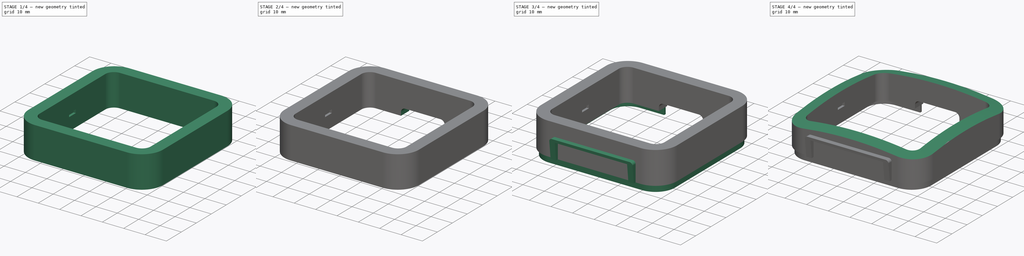
[diagram: build sequence overview — one tinted view per stage of 4, left to right]
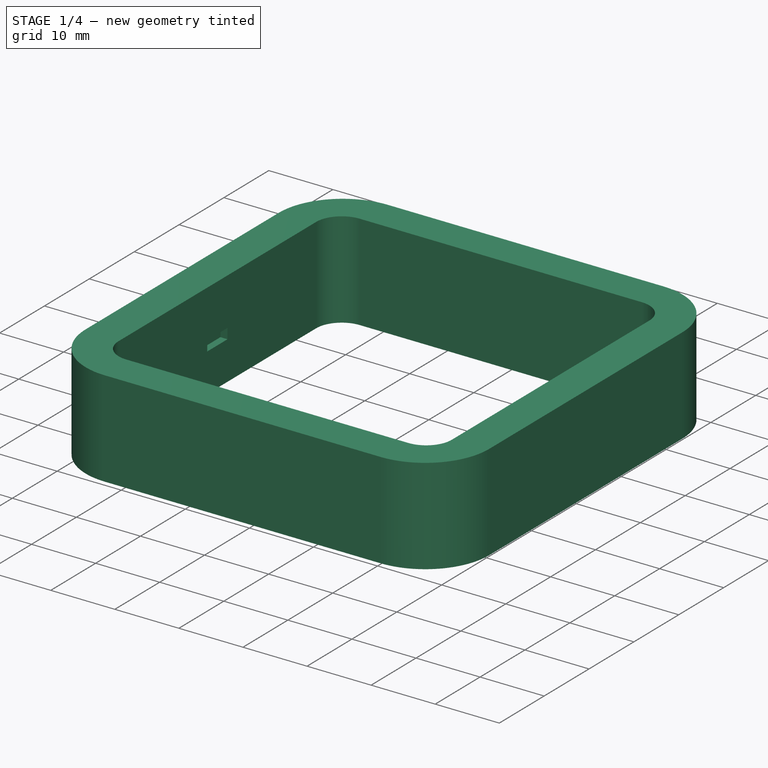
[diagram: stage 1 of 4 — iso view after this stage's code; geometry added in this stage tinted green]
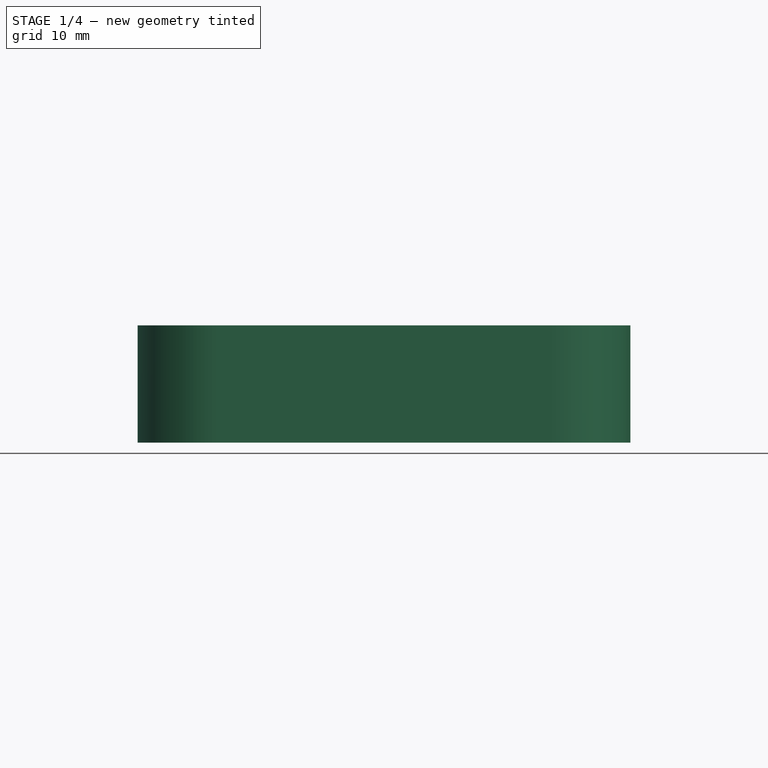
[diagram: stage 1 of 4 — front view after this stage's code; geometry added in this stage tinted green]
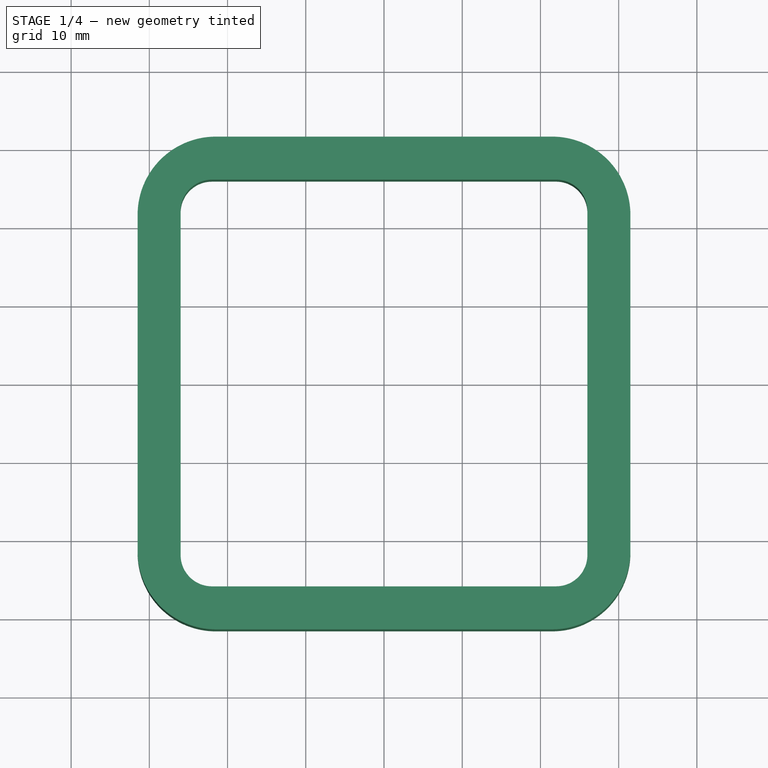
[diagram: stage 1 of 4 — top view after this stage's code; geometry added in this stage tinted green]
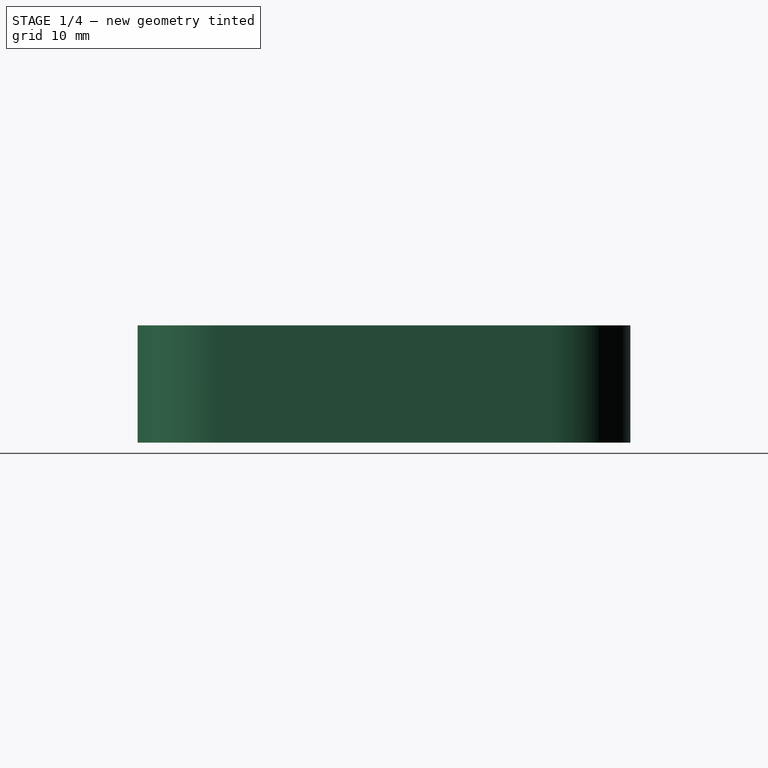
[diagram: stage 1 of 4 — right view after this stage's code; geometry added in this stage tinted green]
FCSTD DOCUMENT  (FreeCAD 0.19.4R1_voidlinux)
Label: shell_front
License: All rights reserved
LicenseURL: http://en.wikipedia.org/wiki/All_rights_reserved
objects: Sketcher::SketchObject×7, PartDesign::Pad×3, PartDesign::Pocket×3, PartDesign::Body×2, PartDesign::Revolution×1, PartDesign::Mirrored×1, Part::Cut×1, PartDesign::CoordinateSystem×1, App::Part×1
note: 26 computed .brp shape members not serialized (recipe doc carries the construction recipe); baked Part::Feature solids carry a one-line shape summary decoded from their .brp

FEATURE [Sketcher::SketchObject] Sketch001
  AttachmentOffset = pos=(0,0,-15) rot=(0,0,1;0rad)
  FullyConstrained = true
  MapMode = 5
  Placement = pos=(0,0,-15) rot=(0,0,1;0rad)
  Support = -> [XY_Plane002]
  sketch-geometry (16):
    g0: LineSegment StartX=-21.5 StartY=31.5 StartZ=0 EndX=21.5 EndY=31.5 EndZ=0
    g1: LineSegment StartX=31.5 StartY=21.5 StartZ=0 EndX=31.5 EndY=-21.5 EndZ=0
    g2: LineSegment StartX=-21.5 StartY=-31.5 StartZ=0 EndX=21.5 EndY=-31.5 EndZ=0
    g3: LineSegment StartX=-31.5 StartY=21.5 StartZ=0 EndX=-31.5 EndY=-21.5 EndZ=0
    g4: ArcOfCircle CenterX=-21.5 CenterY=21.5 CenterZ=0 NormalX=0 NormalY=0 NormalZ=1 AngleXU=0 Radius=10 StartAngle=1.57079 EndAngle=3.14159
    g5: ArcOfCircle CenterX=21.5 CenterY=21.5 CenterZ=0 NormalX=0 NormalY=0 NormalZ=1 AngleXU=0 Radius=10 StartAngle=1.76314e-07 EndAngle=1.5708
    g6: ArcOfCircle CenterX=21.5 CenterY=-21.5 CenterZ=0 NormalX=0 NormalY=0 NormalZ=1 AngleXU=0 Radius=10 StartAngle=4.71239 EndAngle=6.28319
    g7: ArcOfCircle CenterX=-21.5 CenterY=-21.5 CenterZ=0 NormalX=0 NormalY=0 NormalZ=1 AngleXU=0 Radius=10 StartAngle=3.14159 EndAngle=4.71239
    g8: LineSegment StartX=-22 StartY=26 StartZ=0 EndX=22 EndY=26 EndZ=0
    g9: LineSegment StartX=-22 StartY=-26 StartZ=0 EndX=22 EndY=-26 EndZ=0
    g10: LineSegment StartX=26 StartY=22 StartZ=0 EndX=26 EndY=-22 EndZ=0
    g11: LineSegment StartX=-26 StartY=22 StartZ=0 EndX=-26 EndY=-22 EndZ=0
    g12: ArcOfCircle CenterX=-22 CenterY=22 CenterZ=0 NormalX=0 NormalY=0 NormalZ=1 AngleXU=0 Radius=4 StartAngle=1.5708 EndAngle=3.14159
    g13: ArcOfCircle CenterX=22 CenterY=22 CenterZ=0 NormalX=0 NormalY=0 NormalZ=1 AngleXU=0 Radius=4 StartAngle=6.28319 EndAngle=7.85398
    g14: ArcOfCircle CenterX=22 CenterY=-22 CenterZ=0 NormalX=0 NormalY=0 NormalZ=1 AngleXU=0 Radius=4 StartAngle=4.71239 EndAngle=6.28319
    g15: ArcOfCircle CenterX=-22 CenterY=-22 CenterZ=0 NormalX=0 NormalY=0 NormalZ=1 AngleXU=0 Radius=4 StartAngle=3.14159 EndAngle=4.71239
  constraints (54):
    c: Horizontal(g0)
    c: Vertical(g1)
    c: Horizontal(g2)
    c: Vertical(g3)
    c: Equal(g1,g2)
    c: Equal(g2,g3)
    c: Equal(g2,g0)
    c: Coincident(g4,g0)
    c: Coincident(g4,g3)
    c: Coincident(g5,g0)
    c: Coincident(g5,g1)
    c: Coincident(g6,g1)
    c: Coincident(g6,g2)
    c: Coincident(g7,g2)
    c: Coincident(g7,g3)
    c: Equal(g5,g6)
    c: Equal(g6,g7)
    c: Equal(g7,g4)
    c: Tangent(g4,g0)
    c: Tangent(g4,g3)
    c: Tangent(g0,g5)
    c: Tangent(g1,g5)
    c: Tangent(g1,g6)
    c: Tangent(g7,g2)
    c: Radius(g7) = 10
    c: DistanceX(g3,g1) = 63
    c: Symmetric(g0,g2,g-1)
    c: Horizontal(g8)
    c: Horizontal(g9)
    c: Vertical(g10)
    c: Vertical(g11)
    c: Coincident(g12,g8)
    c: Coincident(g12,g11)
    c: Coincident(g13,g8)
    c: Coincident(g13,g10)
    c: Coincident(g14,g10)
    c: Coincident(g14,g9)
    c: Coincident(g15,g11)
    c: Coincident(g15,g9)
    c: Equal(g8,g10)
    c: Equal(g10,g9)
    c: Equal(g9,g11)
    c: Equal(g12,g13)
    c: Equal(g14,g13)
    c: Equal(g14,g15)
    c: Tangent(g12,g8)
    c: Tangent(g8,g13)
    c: Tangent(g13,g10)
    c: Tangent(g10,g14)
    c: Tangent(g14,g9)
    c: Symmetric(g8,g9,g-1)
    c: DistanceX(g11,g10) = 52
    c: Radius(g12) = 4
    c: Tangent(g15,g11)
FEATURE [PartDesign::Pad] Pad
  Direction = (1,1,1)
  Length = 15
  Length2 = 100
  Profile = -> Sketch001
  Type = 0
FEATURE [PartDesign::Body] Body002  label="limit_walls"
  Group = -> [Sketch002,Revolution001]
  Origin = -> Origin003
  Tip = -> Revolution001
FEATURE [Sketcher::SketchObject] Sketch
  ExternalGeometry = -> [Pad]
  FullyConstrained = true
  MapMode = 5
  Placement = pos=(-26,0,0) rot=(0.57735,0.57735,0.57735;2.0944rad)
  Support = -> [Pad]
  sketch-geometry (4):
    g0: LineSegment StartX=-2.25 StartY=-7.4 StartZ=0 EndX=2.25 EndY=-7.4 EndZ=0
    g1: LineSegment StartX=2.25 StartY=-7.4 StartZ=0 EndX=2.25 EndY=-9 EndZ=0
    g2: LineSegment StartX=2.25 StartY=-9 StartZ=0 EndX=-2.25 EndY=-9 EndZ=0
    g3: LineSegment StartX=-2.25 StartY=-9 StartZ=0 EndX=-2.25 EndY=-7.4 EndZ=0
  constraints (11):
    c: Coincident(g0,g1)
    c: Coincident(g1,g2)
    c: Coincident(g2,g3)
    c: Coincident(g3,g0)
    c: Horizontal(g0)
    c: Vertical(g1)
    c: Vertical(g3)
    c: Symmetric(g1,g2,g-2)
    c: DistanceY(g1,g-1) = 9
    c: Distance(g3) = 1.6
    c: Distance(g0) = 4.5
FEATURE [PartDesign::Pocket] Pocket
  BaseFeature = -> Pad
  Length = 1.1
  Length2 = 100
  Profile = -> Sketch
  Type = 0
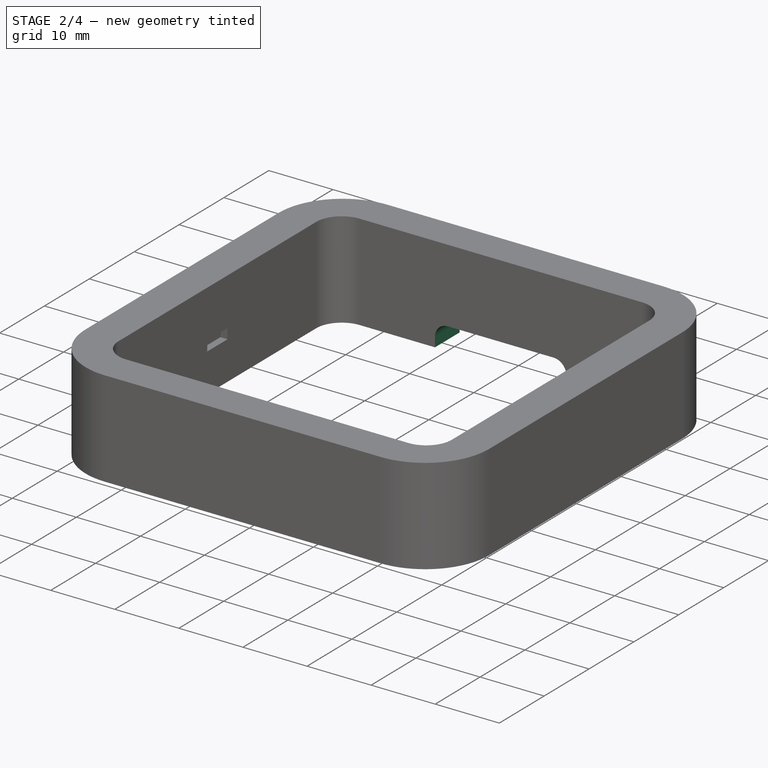
[diagram: stage 2 of 4 — iso view after this stage's code; geometry added in this stage tinted green]
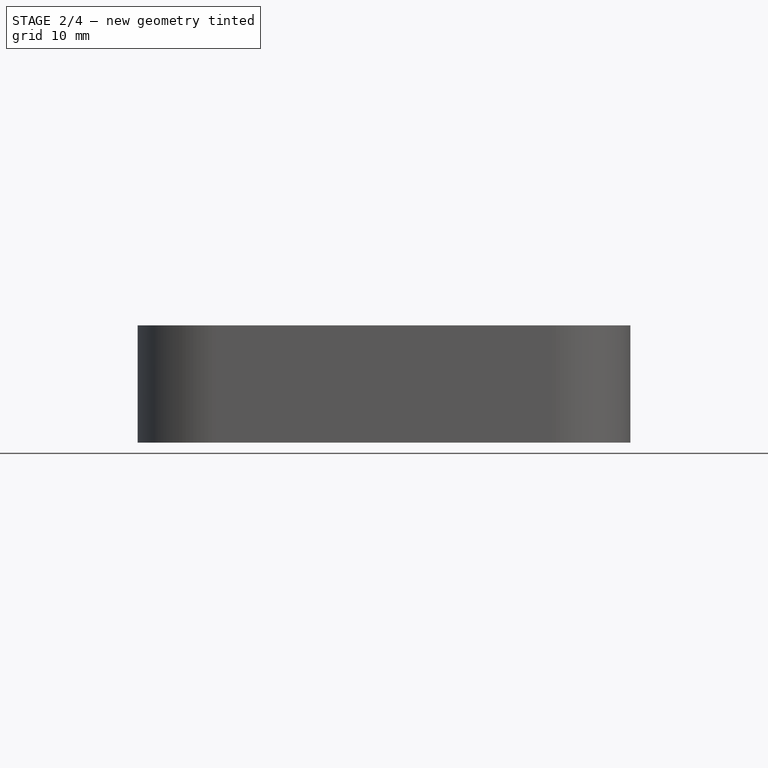
[diagram: stage 2 of 4 — front view after this stage's code; geometry added in this stage tinted green]
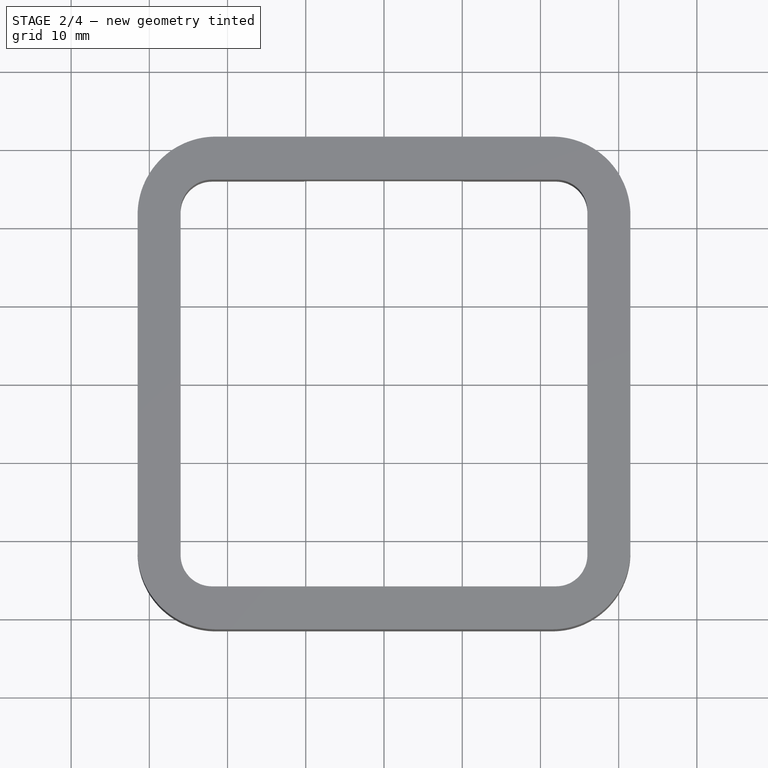
[diagram: stage 2 of 4 — top view after this stage's code; geometry added in this stage tinted green]
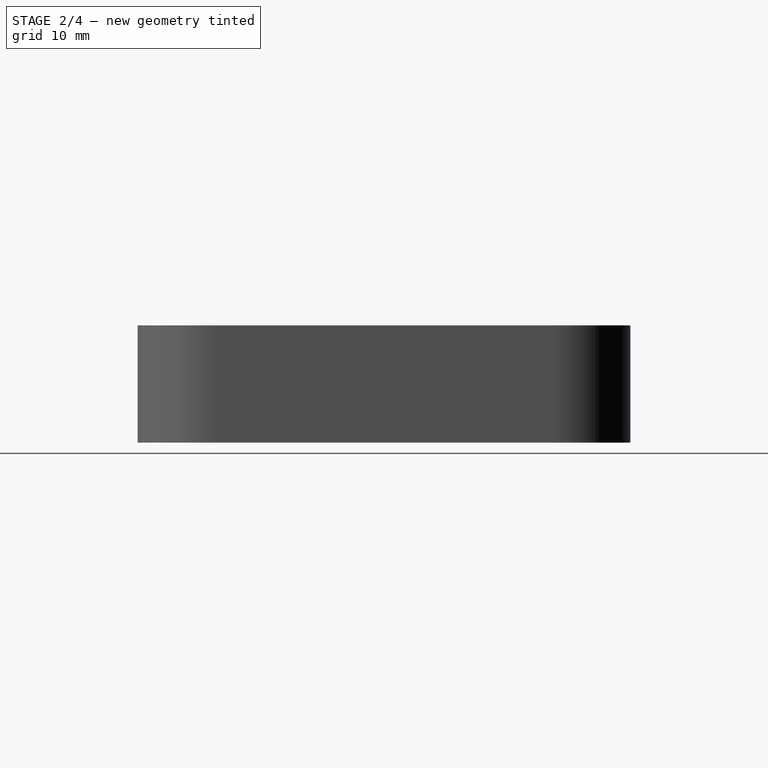
[diagram: stage 2 of 4 — right view after this stage's code; geometry added in this stage tinted green]
FEATURE [PartDesign::Mirrored] Mirrored
  BaseFeature = -> Pocket
  MirrorPlane = -> YZ_Plane002
  Originals = -> [Pocket]
FEATURE [Sketcher::SketchObject] Sketch003
  ExternalGeometry = -> [Mirrored]
  FullyConstrained = true
  MapMode = 5
  Placement = pos=(0,31.5,0) rot=(0,0.707107,0.707107;3.14159rad)
  Support = -> [Mirrored]
  sketch-geometry (6):
    g0: LineSegment StartX=-10.25 StartY=-15 StartZ=0 EndX=-10.25 EndY=-13.5 EndZ=0
    g1: LineSegment StartX=10.25 StartY=-15 StartZ=0 EndX=10.25 EndY=-13.5 EndZ=0
    g2: LineSegment StartX=-8.25 StartY=-11.5 StartZ=0 EndX=8.25 EndY=-11.5 EndZ=0
    g3: ArcOfCircle CenterX=8.25 CenterY=-13.5 CenterZ=0 NormalX=0 NormalY=0 NormalZ=1 AngleXU=0 Radius=2 StartAngle=6.28318 EndAngle=7.85398
    g4: ArcOfCircle CenterX=-8.25 CenterY=-13.5 CenterZ=0 NormalX=0 NormalY=0 NormalZ=1 AngleXU=0 Radius=2 StartAngle=1.5708 EndAngle=3.14159
    g5: LineSegment StartX=-10.25 StartY=-15 StartZ=0 EndX=10.25 EndY=-15 EndZ=0
  constraints (18):
    c: PointOnObject(g0,g-3)
    c: Symmetric(g0,g1,g-2)
    c: Equal(g0,g1)
    c: DistanceY(g0,g2) = 3.5
    c: Distance(g1,g0) = 20.5
    c: Symmetric(g2,g2,g-2)
    c: Coincident(g3,g2)
    c: Coincident(g3,g1)
    c: Coincident(g4,g2)
    c: Coincident(g4,g0)
    c: Tangent(g0,g4)
    c: Tangent(g4,g2)
    c: Tangent(g3,g2)
    c: Tangent(g3,g1)
    c: Radius(g3) = 2
    c: Vertical(g0)
    c: Coincident(g5,g0)
    c: Coincident(g5,g1)
FEATURE [PartDesign::Pocket] Pocket001
  BaseFeature = -> Mirrored
  Length = 5
  Length2 = 100
  Profile = -> Sketch003
  Type = 2
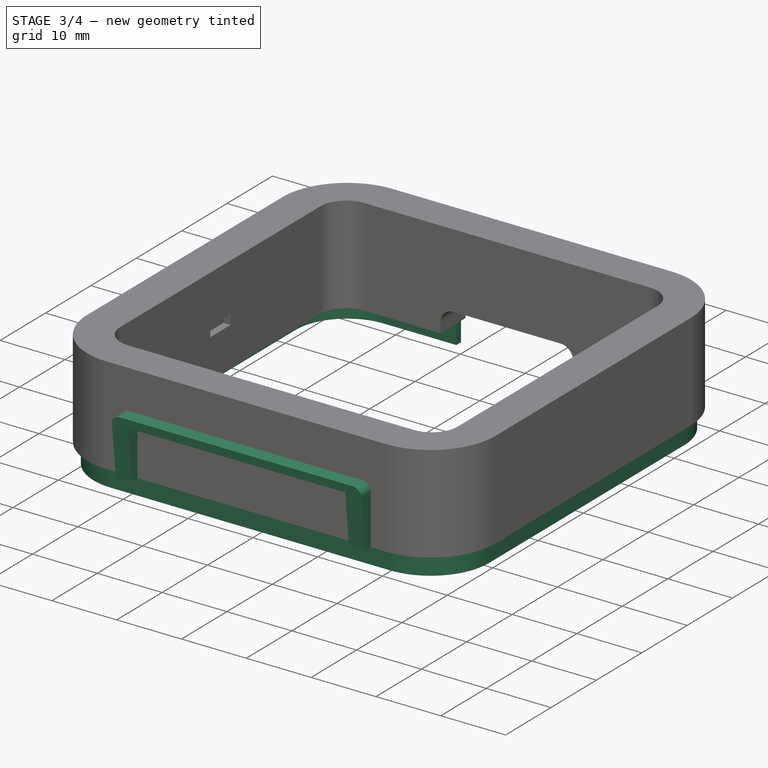
[diagram: stage 3 of 4 — iso view after this stage's code; geometry added in this stage tinted green]
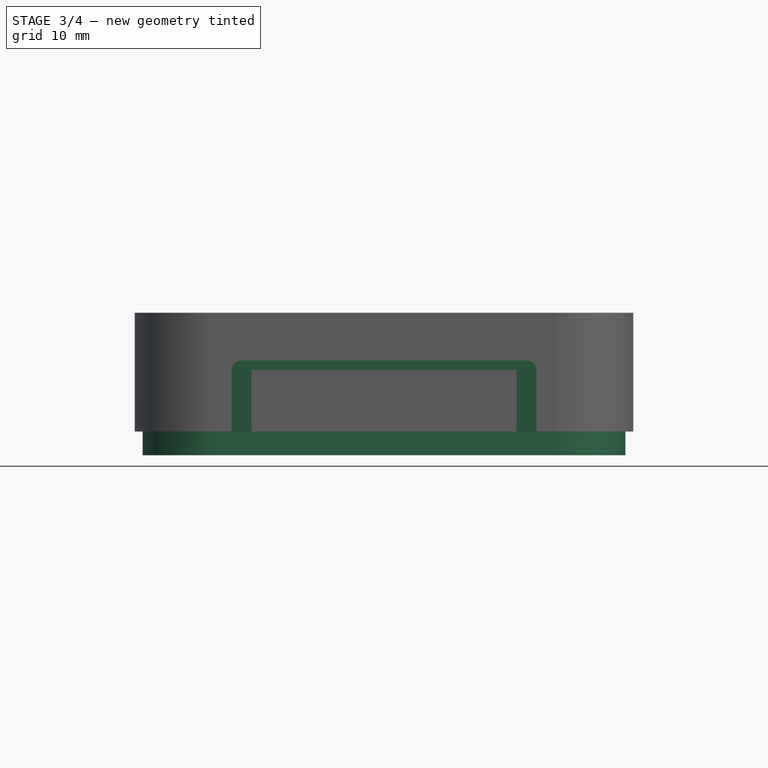
[diagram: stage 3 of 4 — front view after this stage's code; geometry added in this stage tinted green]
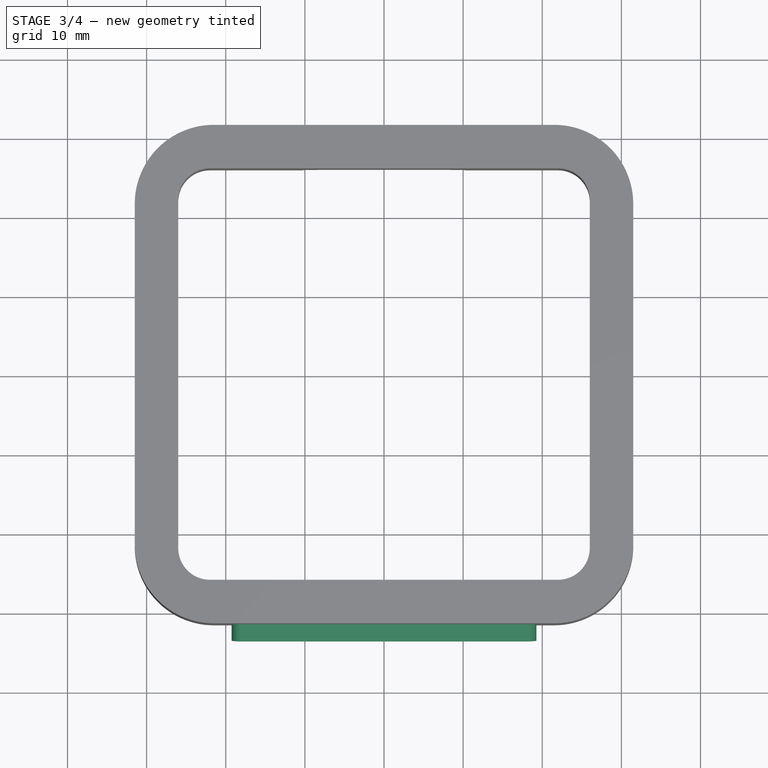
[diagram: stage 3 of 4 — top view after this stage's code; geometry added in this stage tinted green]
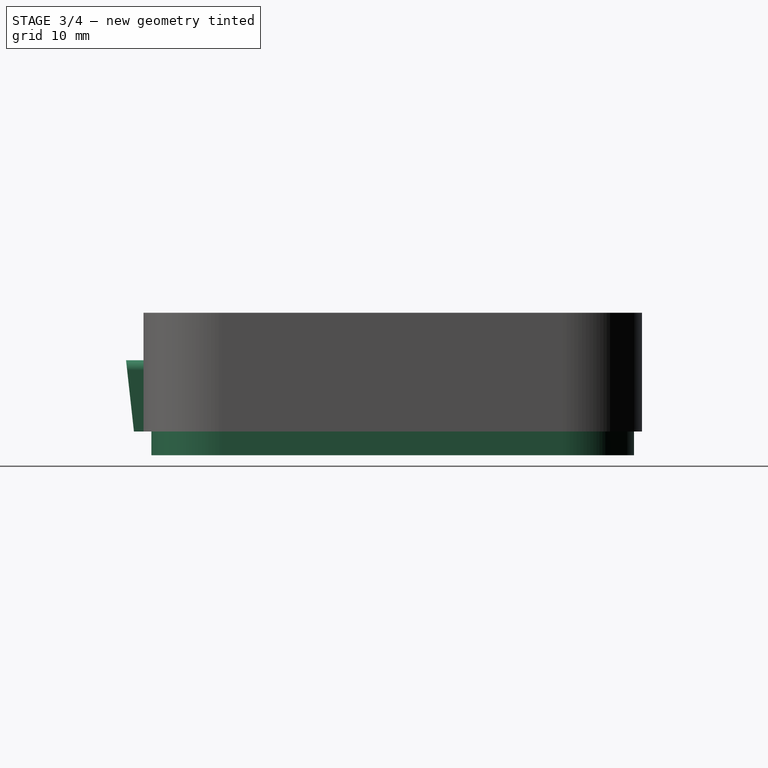
[diagram: stage 3 of 4 — right view after this stage's code; geometry added in this stage tinted green]
FEATURE [Sketcher::SketchObject] Sketch004
  ExternalGeometry = -> [Pocket001]
  FullyConstrained = true
  MapMode = 5
  Placement = pos=(0,-31.5,0) rot=(1,0,0;1.5708rad)
  Support = -> [Pocket001]
  sketch-geometry (10):
    g0: LineSegment StartX=-19.25 StartY=-15 StartZ=0 EndX=-19.25 EndY=-7.25 EndZ=0
    g1: LineSegment StartX=-16.75 StartY=-15 StartZ=0 EndX=-16.75 EndY=-7.25 EndZ=0
    g2: LineSegment StartX=-19.25 StartY=-15 StartZ=0 EndX=-16.75 EndY=-15 EndZ=0
    g3: LineSegment StartX=16.75 StartY=-15 StartZ=0 EndX=16.75 EndY=-7.25 EndZ=0
    g4: LineSegment StartX=19.25 StartY=-15 StartZ=0 EndX=19.25 EndY=-7.25 EndZ=0
    g5: LineSegment StartX=16.75 StartY=-15 StartZ=0 EndX=19.25 EndY=-15 EndZ=0
    g6: LineSegment StartX=-18 StartY=-6 StartZ=0 EndX=18 EndY=-6 EndZ=0
    g7: ArcOfCircle CenterX=-18 CenterY=-7.25 CenterZ=0 NormalX=0 NormalY=0 NormalZ=1 AngleXU=0 Radius=1.25 StartAngle=1.5708 EndAngle=3.14159
    g8: ArcOfCircle CenterX=18 CenterY=-7.25 CenterZ=0 NormalX=0 NormalY=0 NormalZ=1 AngleXU=0 Radius=1.25 StartAngle=6.28319 EndAngle=7.85398
    g9: LineSegment StartX=-16.75 StartY=-7.25 StartZ=0 EndX=16.75 EndY=-7.25 EndZ=0
  constraints (27):
    c: PointOnObject(g0,g-3)
    c: Vertical(g0)
    c: PointOnObject(g1,g-3)
    c: Vertical(g1)
    c: Coincident(g2,g0)
    c: Coincident(g2,g1)
    c: Distance(g2) = 2.5
    c: Coincident(g5,g3)
    c: Coincident(g5,g4)
    c: Symmetric(g4,g0,g-2)
    c: Symmetric(g3,g1,g-2)
    c: Symmetric(g1,g3,g-2)
    c: Symmetric(g0,g4,g-2)
    c: Distance(g3,g1) = 33.5
    c: Coincident(g7,g0)
    c: Coincident(g7,g6)
    c: Coincident(g8,g6)
    c: Coincident(g8,g4)
    c: Tangent(g4,g8)
    c: Tangent(g8,g6)
    c: Symmetric(g6,g6,g-2)
    c: Equal(g8,g7)
    c: DistanceY(g0,g6) = 9
    c: Coincident(g9,g1)
    c: Coincident(g9,g3)
    c: DistanceY(g1,g6) = 1.25
    c: Radius(g7) = 1.25
FEATURE [PartDesign::Pad] Pad001
  BaseFeature = -> Pocket001
  Direction = (1,1,1)
  Length = 5
  Length2 = 100
  Profile = -> Sketch004
  Type = 0
FEATURE [Sketcher::SketchObject] Sketch005
  ExternalGeometry = -> [Pad001]
  FullyConstrained = true
  MapMode = 5
  Placement = pos=(-19.25,0,0) rot=(0.57735,-0.57735,-0.57735;2.0944rad)
  Support = -> [Pad001]
  expr: Constraints[0] = atan(2 / 18)
  sketch-geometry (4):
    g0: LineSegment StartX=33.7 StartY=-6 StartZ=0 EndX=32.7 EndY=-15 EndZ=0
    g1: LineSegment StartX=33.7 StartY=-6 StartZ=0 EndX=36.5 EndY=-6 EndZ=0
    g2: LineSegment StartX=36.5 StartY=-6 StartZ=0 EndX=36.5 EndY=-15 EndZ=0
    g3: LineSegment StartX=36.5 StartY=-15 StartZ=0 EndX=32.7 EndY=-15 EndZ=0
  constraints (11):
    c: Angle(g0,g-3) = 0.110657
    c: PointOnObject(g0,g-4)
    c: PointOnObject(g0,g-5)
    c: Distance(g0,g-5) = 1.2
    c: Coincident(g1,g0)
    c: PointOnObject(g1,g-4)
    c: PointOnObject(g1,g-6)
    c: Coincident(g2,g1)
    c: Coincident(g2,g-6)
    c: Coincident(g3,g2)
    c: Coincident(g3,g0)
FEATURE [PartDesign::Pocket] Pocket002
  BaseFeature = -> Pad001
  Length = 5
  Length2 = 100
  Profile = -> Sketch005
  Type = 1
FEATURE [Sketcher::SketchObject] Sketch006
  ExternalGeometry = -> [Pocket002]
  FullyConstrained = true
  MapMode = 5
  Placement = pos=(0,0,-15) rot=(1,0,0;3.14159rad)
  Support = -> [Pocket002]
  sketch-geometry (24):
    g0: LineSegment StartX=-21.5 StartY=30.5 StartZ=0 EndX=21.5 EndY=30.5 EndZ=0
    g1: LineSegment StartX=-21.5 StartY=29.5 StartZ=0 EndX=21.5 EndY=29.5 EndZ=0
    g2: ArcOfCircle CenterX=-21.5 CenterY=21.5 CenterZ=0 NormalX=0 NormalY=0 NormalZ=1 AngleXU=0 Radius=8.99998 StartAngle=1.57079 EndAngle=3.14159
    g3: LineSegment StartX=-21.5 StartY=30.5 StartZ=0 EndX=-21.5 EndY=31.5 EndZ=0
    g4: LineSegment StartX=-30.5 StartY=21.5 StartZ=0 EndX=-30.5 EndY=-21.5 EndZ=0
    g5: LineSegment StartX=-29.5 StartY=21.5 StartZ=0 EndX=-29.5 EndY=-21.5 EndZ=0
    g6: ArcOfCircle CenterX=-21.5 CenterY=21.5 CenterZ=0 NormalX=0 NormalY=0 NormalZ=1 AngleXU=0 Radius=8 StartAngle=1.5708 EndAngle=3.14159
    g7: LineSegment StartX=-21.5 StartY=30.5 StartZ=0 EndX=-21.5 EndY=29.5 EndZ=0
    g8: LineSegment StartX=-31.5 StartY=21.5 StartZ=0 EndX=-30.5 EndY=21.5 EndZ=0
    g9: LineSegment StartX=-30.5 StartY=21.5 StartZ=0 EndX=-29.5 EndY=21.5 EndZ=0
    g10: LineSegment StartX=29.5 StartY=21.5 StartZ=0 EndX=29.5 EndY=-21.5 EndZ=0
    g11: LineSegment StartX=30.5 StartY=21.5 StartZ=0 EndX=30.5 EndY=-21.5 EndZ=0
    g12: ArcOfCircle CenterX=21.5 CenterY=21.5 CenterZ=0 NormalX=0 NormalY=0 NormalZ=1 AngleXU=0 Radius=8.99998 StartAngle=6.28318 EndAngle=7.85398
    g13: ArcOfCircle CenterX=21.5 CenterY=21.5 CenterZ=0 NormalX=0 NormalY=0 NormalZ=1 AngleXU=0 Radius=7.99998 StartAngle=6.28318 EndAngle=7.85398
    g14: ArcOfCircle CenterX=-21.5 CenterY=-21.5 CenterZ=0 NormalX=0 NormalY=0 NormalZ=1 AngleXU=0 Radius=8.99998 StartAngle=3.14159 EndAngle=4.71239
    g15: ArcOfCircle CenterX=-21.5 CenterY=-21.5 CenterZ=0 NormalX=0 NormalY=0 NormalZ=1 AngleXU=0 Radius=7.99998 StartAngle=3.14159 EndAngle=4.71239
    g16: ArcOfCircle CenterX=21.5 CenterY=-21.5 CenterZ=0 NormalX=0 NormalY=0 NormalZ=1 AngleXU=0 Radius=7.99998 StartAngle=4.71239 EndAngle=6.28319
    g17: ArcOfCircle CenterX=21.5 CenterY=-21.5 CenterZ=0 NormalX=0 NormalY=0 NormalZ=1 AngleXU=0 Radius=8.99998 StartAngle=4.71239 EndAngle=6.28319
    g18: LineSegment StartX=-21.5 StartY=-29.5 StartZ=0 EndX=-10.25 EndY=-29.5 EndZ=0
    g19: LineSegment StartX=-21.5 StartY=-30.5 StartZ=0 EndX=-10.25 EndY=-30.5 EndZ=0
    g20: LineSegment StartX=-10.25 StartY=-30.5 StartZ=0 EndX=-10.25 EndY=-29.5 EndZ=0
    g21: LineSegment StartX=21.5 StartY=-30.5 StartZ=0 EndX=10.25 EndY=-30.5 EndZ=0
    g22: LineSegment StartX=21.5 StartY=-29.5 StartZ=0 EndX=10.25 EndY=-29.5 EndZ=0
    g23: LineSegment StartX=10.25 StartY=-29.5 StartZ=0 EndX=10.25 EndY=-30.5 EndZ=0
  constraints (63):
    c: Horizontal(g0)
    c: DistanceY(g0,g-3) = 1
    c: DistanceY(g1,g0) = 1
    c: Coincident(g2,g0)
    c: Tangent(g2,g0)
    c: Coincident(g3,g0)
    c: Coincident(g3,g-4)
    c: Vertical(g3)
    c: Coincident(g4,g2)
    c: Coincident(g6,g1)
    c: Coincident(g6,g5)
    c: Coincident(g7,g0)
    c: Coincident(g7,g1)
    c: Vertical(g7)
    c: Coincident(g8,g-4)
    c: Coincident(g8,g2)
    c: Coincident(g9,g2)
    c: Coincident(g9,g5)
    c: Horizontal(g9)
    c: Horizontal(g8)
    c: Tangent(g6,g1)
    c: Tangent(g6,g5)
    c: Coincident(g12,g0)
    c: Coincident(g12,g11)
    c: Coincident(g13,g1)
    c: Coincident(g13,g10)
    c: Symmetric(g1,g1,g-2)
    c: Symmetric(g11,g2,g-2)
    c: Symmetric(g10,g5,g-2)
    c: Symmetric(g12,g2,g-2)
    c: Coincident(g13,g12)
    c: Symmetric(g10,g10,g-1)
    c: Symmetric(g11,g11,g-1)
    c: Symmetric(g5,g5,g-1)
    c: Symmetric(g4,g2,g-1)
    c: Coincident(g14,g4)
    c: Coincident(g15,g5)
    c: Symmetric(g2,g15,g-1)
    c: Symmetric(g2,g14,g-1)
    c: Coincident(g16,g10)
    c: Coincident(g17,g11)
    c: Symmetric(g16,g14,g-2)
    c: Symmetric(g17,g14,g-2)
    c: Coincident(g18,g15)
    c: PointOnObject(g18,g-5)
    c: Horizontal(g18)
    c: Coincident(g19,g14)
    c: PointOnObject(g19,g-5)
    c: Horizontal(g19)
    c: Coincident(g20,g19)
    c: Coincident(g20,g18)
    c: Coincident(g21,g17)
    c: PointOnObject(g21,g-6)
    c: Horizontal(g21)
    c: Coincident(g22,g16)
    c: PointOnObject(g22,g-6)
    c: Horizontal(g22)
    c: Coincident(g23,g22)
    c: Coincident(g23,g21)
    c: Tangent(g15,g18)
    c: Tangent(g14,g19)
    c: Tangent(g22,g16)
    c: Tangent(g17,g21)
FEATURE [PartDesign::Pad] Pad002
  BaseFeature = -> Pocket002
  Direction = (1,1,1)
  Length = 3
  Length2 = 100
  Profile = -> Sketch006
  Type = 0
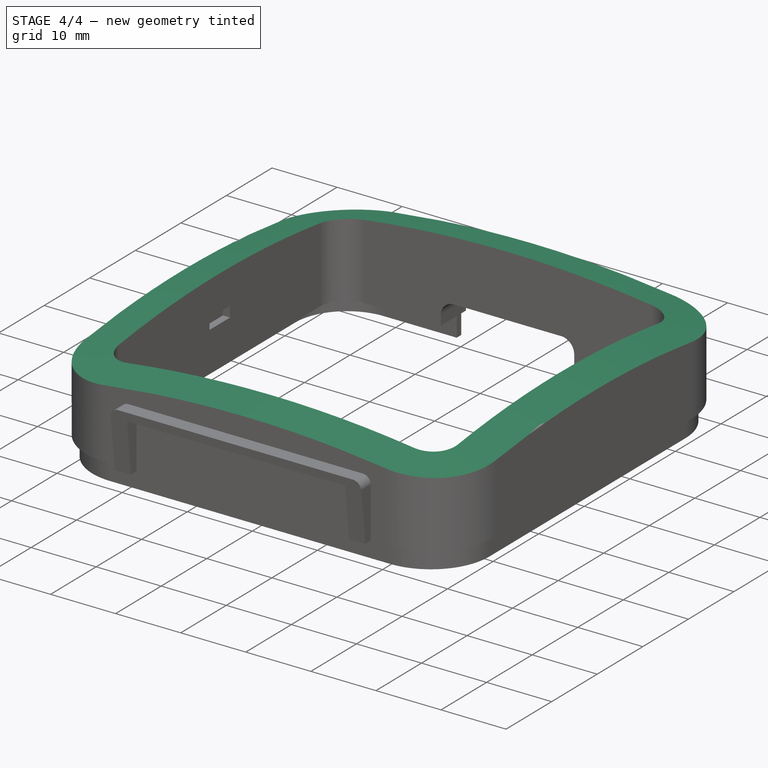
[diagram: stage 4 of 4 — iso view after this stage's code; geometry added in this stage tinted green]
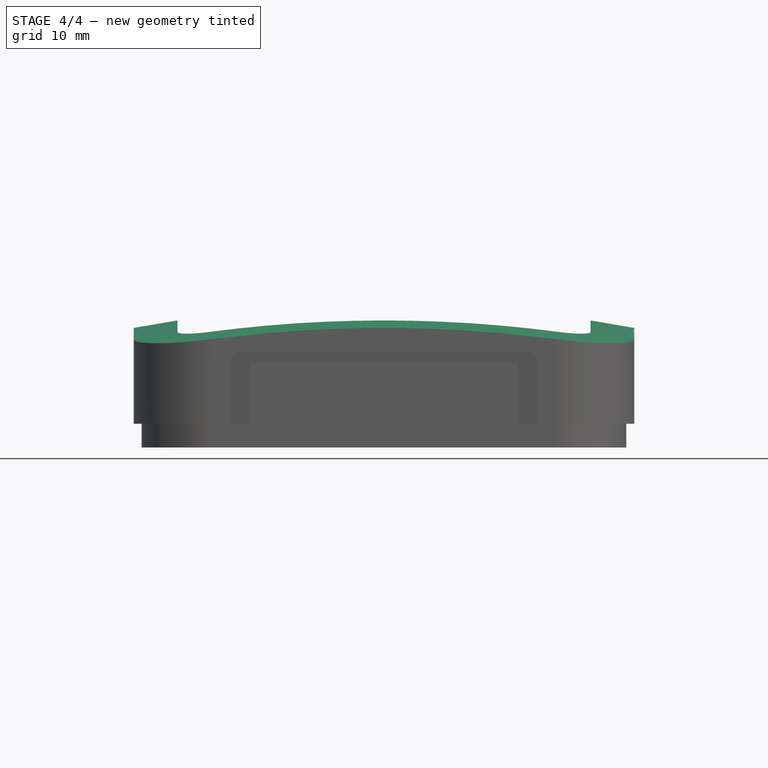
[diagram: stage 4 of 4 — front view after this stage's code; geometry added in this stage tinted green]
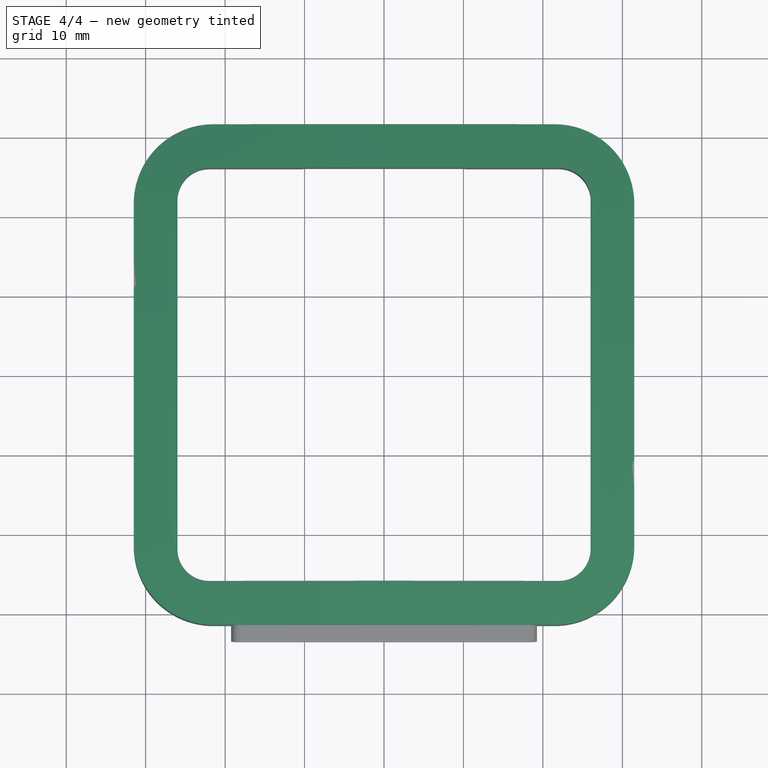
[diagram: stage 4 of 4 — top view after this stage's code; geometry added in this stage tinted green]
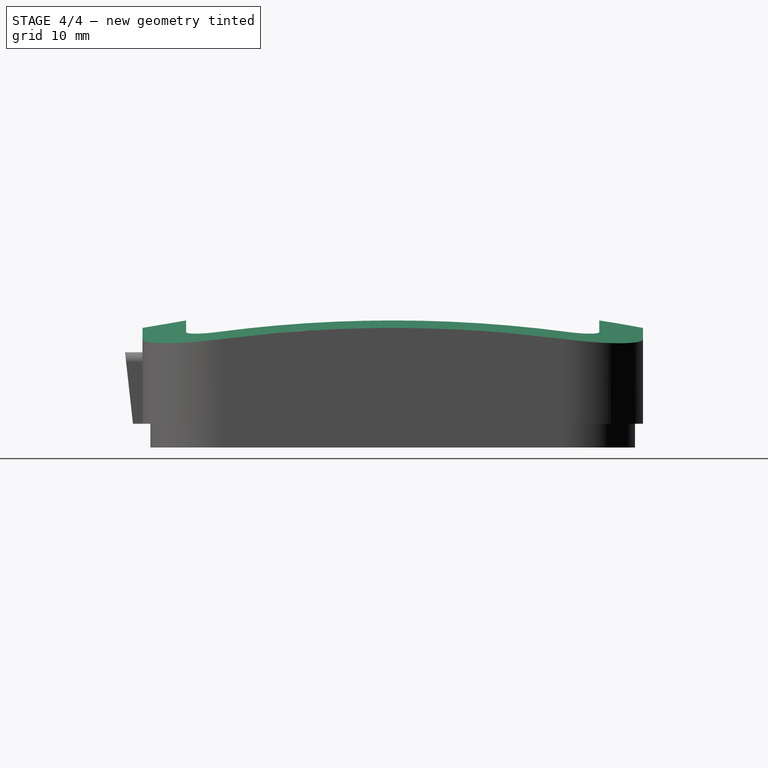
[diagram: stage 4 of 4 — right view after this stage's code; geometry added in this stage tinted green]
FEATURE [Sketcher::SketchObject] Sketch002
  FullyConstrained = true
  MapMode = 5
  Placement = pos=(0,0,0) rot=(0.57735,0.57735,0.57735;2.0944rad)
  Support = -> [YZ_Plane003]
  sketch-geometry (6):
    g0: ArcOfCircle CenterX=0 CenterY=-170 CenterZ=0 NormalX=0 NormalY=0 NormalZ=1 AngleXU=0 Radius=170 StartAngle=1.21008 EndAngle=1.5708
    g1: ArcOfCircle CenterX=0 CenterY=-170 CenterZ=0 NormalX=0 NormalY=0 NormalZ=1 AngleXU=0 Radius=180 StartAngle=1.21008 EndAngle=1.5708
    g2: GeomPoint X=26 Y=-2 Z=0
    g3: LineSegment StartX=0 StartY=-170 StartZ=0 EndX=63.5294 EndY=-1.58381 EndZ=0
    g4: LineSegment StartX=63.5294 StartY=-1.58381 StartZ=0 EndX=60 EndY=-10.9403 EndZ=0
    g5: LineSegment StartX=1.1e-14 StartY=10 StartZ=0 EndX=0 EndY=0 EndZ=0
  constraints (16):
    c: PointOnObject(g0,g-2)
    c: Coincident(g0,g-1)
    c: Coincident(g1,g0)
    c: PointOnObject(g1,g-2)
    c: PointOnObject(g2,g0)
    c: DistanceX(g0,g2) = 26
    c: DistanceX(g0,g0) = 60
    c: DistanceY(g2,g0) = 2
    c: DistanceY(g0,g1) = 10
    c: Coincident(g3,g0)
    c: Coincident(g3,g1)
    c: PointOnObject(g0,g3)
    c: Coincident(g4,g1)
    c: Coincident(g4,g0)
    c: Coincident(g5,g1)
    c: Coincident(g5,g0)
FEATURE [PartDesign::Revolution] Revolution001
  Angle = 360
  Axis = (-2e-16,3e-16,1)
  Base = (0,0,0)
  Placement = pos=(0,0,0) rot=(0.57735,0.57735,0.57735;2.0944rad)
  Profile = -> Sketch002
  ReferenceAxis = -> Sketch002 [V_Axis]
FEATURE [PartDesign::Body] Body001  label="inner_wall"
  Group = -> [Sketch001,Pad,Sketch,Pocket,Mirrored,Sketch003,Pocket001,Sketch004,Pad001,Sketch005,Pocket002,Sketch006,Pad002]
  Origin = -> Origin002
  Tip = -> Pad002
FEATURE [Part::Cut] Cut
  Base = -> Body001
  Tool = -> Body002
FEATURE [PartDesign::CoordinateSystem] LCS_clock_front_face
  AttacherType = Attacher::AttachEngine3D
  MapMode = 45
  Placement = pos=(0,-2.9e-15,-9) rot=(0,0,1;1.5708rad)
  Support = -> [Cut]
FEATURE [App::Part] Part  label="shell_front"
  Group = -> [Body001,Body002,Cut,LCS_clock_front_face]
  Origin = -> Origin
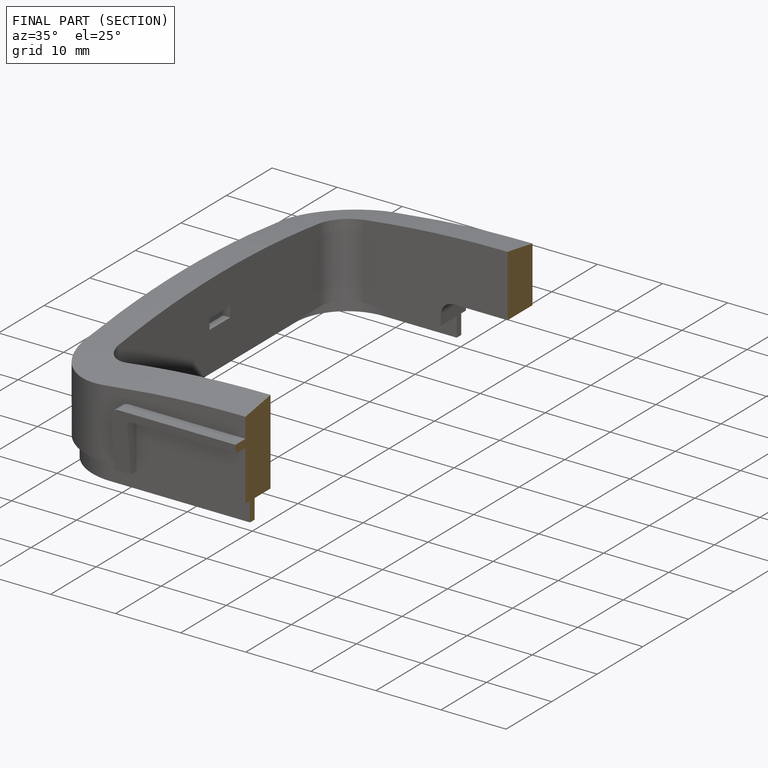
[diagram: finished part — half-section view (interior)]
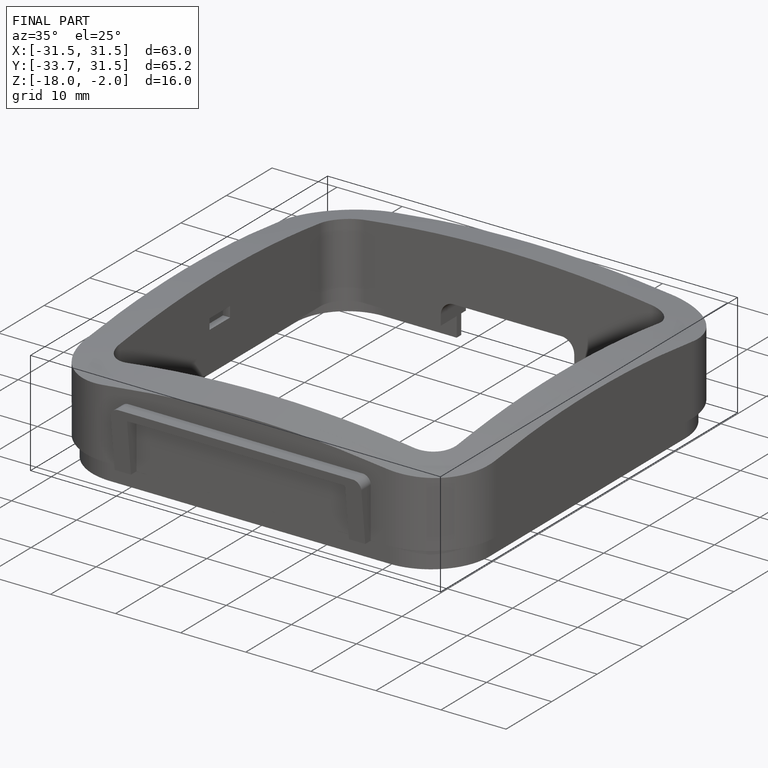
[diagram: finished part — iso view with bounding-box wireframe]
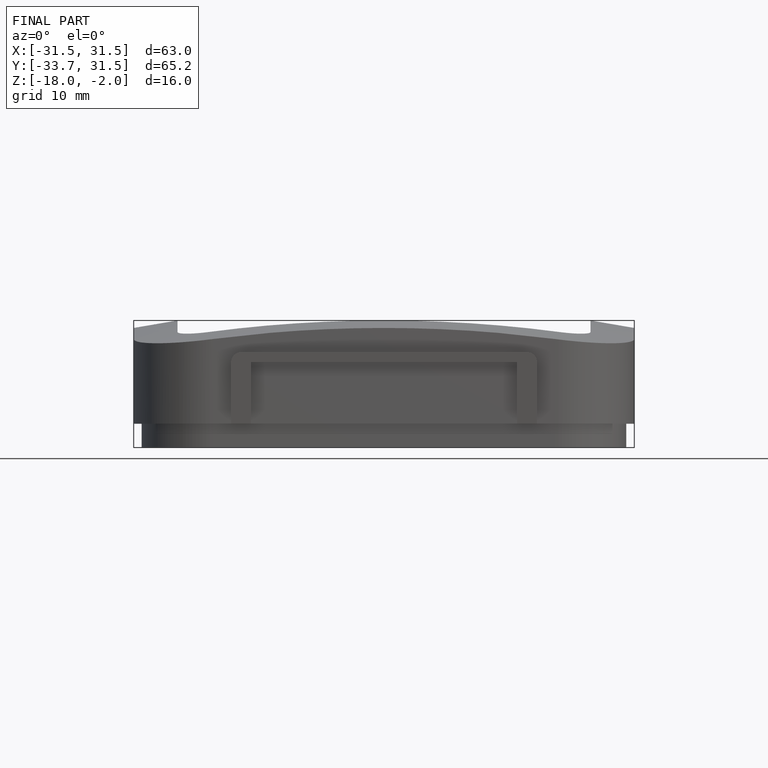
[diagram: finished part — front view with bounding-box wireframe]
